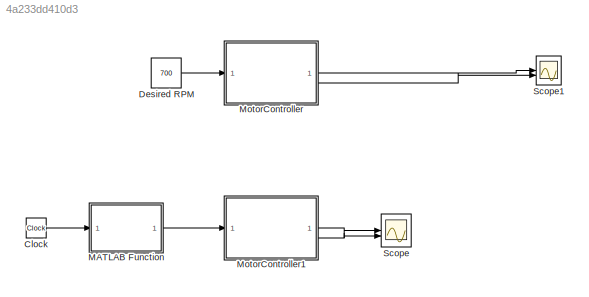
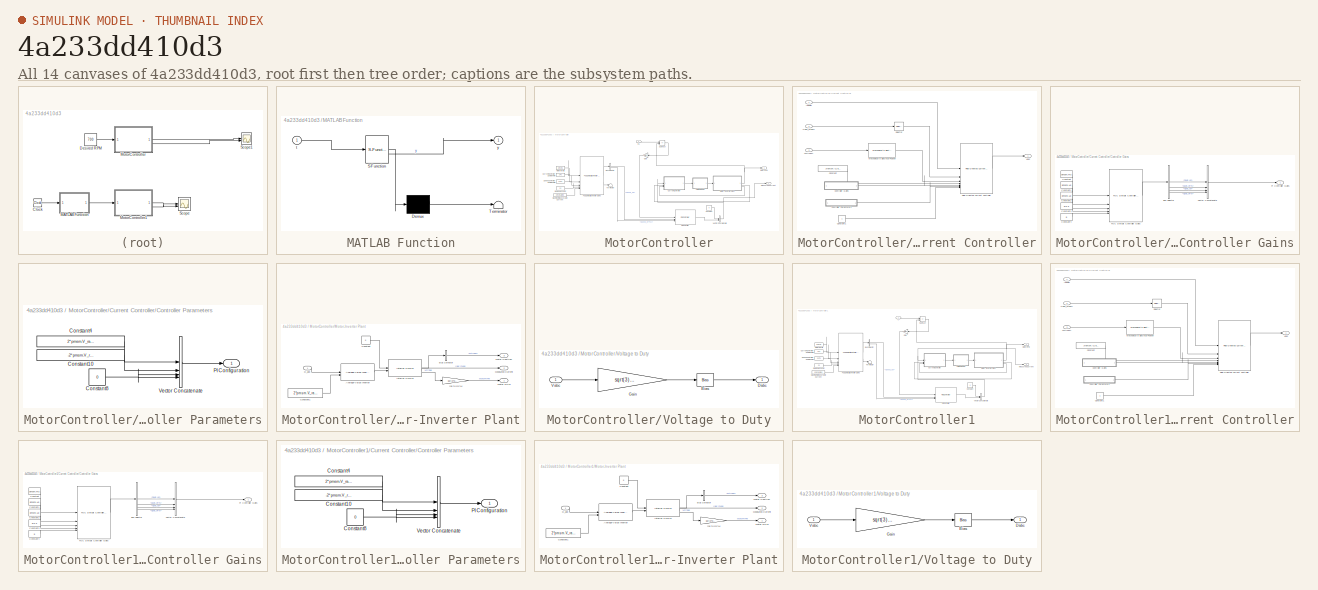
[diagram: thumbnail index - all 14 canvases of the model, root first then tree order]
MODEL slx_4a233dd410d3
KIND model
CONFIG AbsTol = auto
CONFIG EnableMultiTasking = off
CONFIG FixedStep = 25e-6
CONFIG MaxStep = auto
CONFIG MinStep = auto
CONFIG RelTol = 1e-3
CONFIG SampleTimeConstraint = Unconstrained
CONFIG SolverName = FixedStepAuto
CONFIG StartFcn = learning.simulink.modelCallbacks.startFunction(gcs)
CONFIG StartTime = 0.0
CONFIG StopFcn = learning.simulink.modelCallbacks.stopFunction(gcs);
CONFIG StopTime = T_total
WORKSPACE source: mxarray member
WORKSPACE courseObject: object (value not decoded)
WORKSPACE t_ans = [0 2.5e-05 5e-05 7.5e-05 0.0001 0.000125 0.00015 0.000175 0.0002 0.000225 0.00025 0.000275 ... (2001 elements, 2001x1)]
WORKSPACE y_ans = [0 0 0.052825565971 0.155642198422 0.305764234901 0.500647055712 0.737879693209 1.01517782556 1.33037713629 1.68142702156 2.06638462754 2.48340920133 ... (2001 elements, 2001x1)]
BLOCK [Clock] Clock
BLOCK [Constant] Desired RPM
  Value = 700
BLOCK [SubSystem] MATLAB Function
  ErrorFcn = Stateflow.Translate.translate
  PermitHierarchicalResolution = ExplicitOnly
  SFBlockType = MATLAB Function
  TreatAsAtomicUnit = on
BLOCK [Demux] MATLAB Function/ Demux 
  Outputs = 1
BLOCK [S-Function] MATLAB Function/ SFunction 
  EnableBusSupport = off
  FunctionName = sf_sfun
  PortCounts = [1 2]
  SFcnIsStateOwnerBlock = off
  SFunctionDeploymentMode = off
  Tag = Stateflow S-Function 2
BLOCK [Terminator] MATLAB Function/ Terminator 
BLOCK [Inport] MATLAB Function/t
BLOCK [Outport] MATLAB Function/y
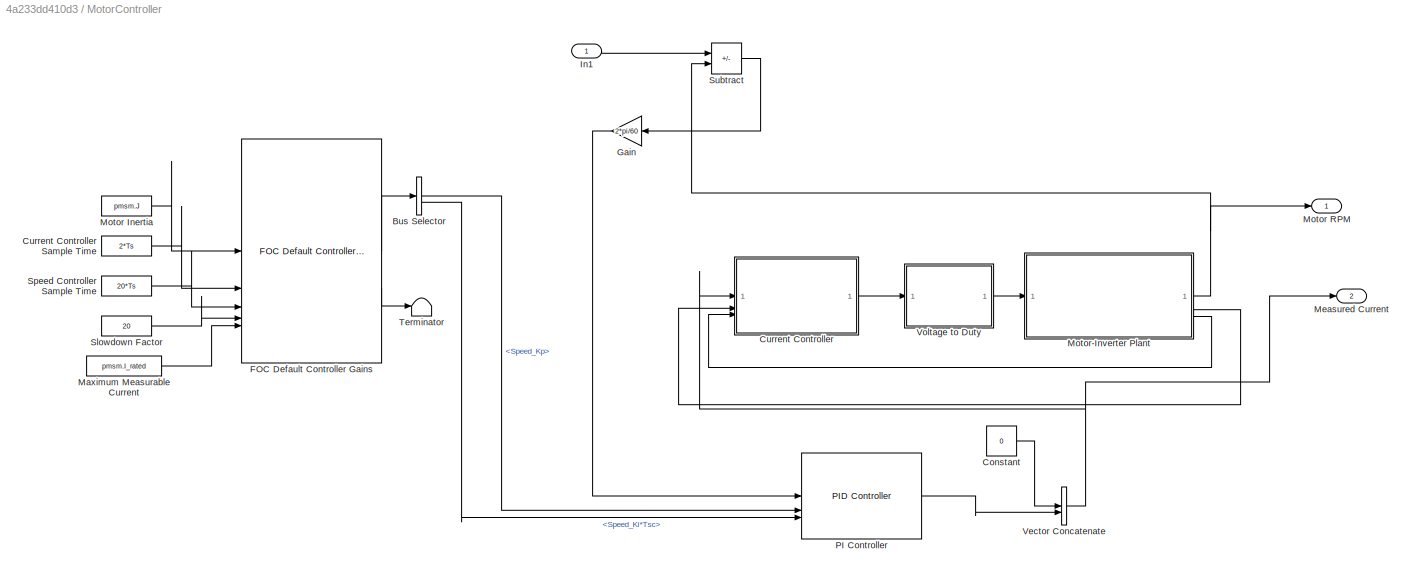
BLOCK [SubSystem] MotorController
BLOCK [BusSelector] MotorController/Bus Selector
  OutputSignals = Speed_Kp,Speed_Ki*Tsc
BLOCK [Constant] MotorController/Constant
  Value = 0
BLOCK [SubSystem] MotorController/Current Controller
BLOCK [Constant] MotorController/Current Controller Sample Time
  Value = 2*Ts
BLOCK [Inport] MotorController/Current Controller/<Iabc_meas>
  Port = 2
BLOCK [Inport] MotorController/Current Controller/<MtrPos>
  Port = 3
BLOCK [Constant] MotorController/Current Controller/Constant
  Value = 2*pmsm.V_rated/sqrt(3)
BLOCK [Constant] MotorController/Current Controller/Constant1
BLOCK [SubSystem] MotorController/Current Controller/Controller Gains
BLOCK [BusSelector] MotorController/Current Controller/Controller Gains/Bus Selector
  OutputSignals = Daxis_Kp,Daxis_Ki*Ts,Qaxis_Kp,Qaxis_Ki*Ts
BLOCK [Constant] MotorController/Current Controller/Controller Gains/Constant
  Value = pmsm.Rs
BLOCK [Constant] MotorController/Current Controller/Controller Gains/Constant1
  Value = pmsm.Ld
BLOCK [Constant] MotorController/Current Controller/Controller Gains/Constant2
  Value = pmsm.Lq
BLOCK [Constant] MotorController/Current Controller/Controller Gains/Constant3
  Value = 2*Ts
BLOCK [Constant] MotorController/Current Controller/Controller Gains/Constant4
  Value = 5
BLOCK [Reference] MotorController/Current Controller/Controller Gains/FOC Default Controller Gains  REF=mcbcontrollergainlib/FOC Default Controller Gains
  LibrarySourceBlock = mcblib/Controls/Controllers/FOC Default Controller Gains
  SourceBlock = mcbcontrollergainlib/FOC Default Controller Gains
  SourceType = FOC Default Controller Gains
BLOCK [Outport] MotorController/Current Controller/Controller Gains/PI Controller Gains
BLOCK [Concatenate] MotorController/Current Controller/Controller Gains/Vector Concatenate
  NumInputs = 4
BLOCK [SubSystem] MotorController/Current Controller/Controller Parameters
BLOCK [Constant] MotorController/Current Controller/Controller Parameters/Constant10
  Value = -2*pmsm.V_rated/sqrt(3)
BLOCK [Constant] MotorController/Current Controller/Controller Parameters/Constant4
  OutDataTypeStr = double
  Value = 2*pmsm.V_rated/sqrt(3)
BLOCK [Constant] MotorController/Current Controller/Controller Parameters/Constant8
  Value = 0
BLOCK [Outport] MotorController/Current Controller/Controller Parameters/PI Configuration
BLOCK [Concatenate] MotorController/Current Controller/Controller Parameters/Vector Concatenate
  NumInputs = 4
BLOCK [Reference] MotorController/Current Controller/Field-Oriented Current Controller  REF=mcbfoclib/Field-Oriented Current Controller
  LibrarySourceBlock = mcblib/Controls/Controllers/Field-Oriented Current Controller
  SourceBlock = mcbfoclib/Field-Oriented Current Controller
  SourceType = Field-Oriented Current Controller
BLOCK [Inport] MotorController/Current Controller/IdqRef
BLOCK [Reference] MotorController/Current Controller/Mechanical to Electrical Position  REF=mcbpositiondecoderlib/Mechanical to Electrical Position
  LibrarySourceBlock = mcblib/Sensor Decoders/Mechanical to Electrical Position
  SourceBlock = mcbpositiondecoderlib/Mechanical to Electrical Position
  SourceType = Mechanical to Electrical Position
BLOCK [Selector] MotorController/Current Controller/Selector
  IndexOptions = Index vector (dialog)
  Indices = [1 2]
  InputPortWidth = 3
  OutputSizes = 1
BLOCK [Outport] MotorController/Current Controller/Vabc
BLOCK [Reference] MotorController/FOC Default Controller Gains  REF=mcbcontrollergainlib/FOC Default Controller Gains
  LibrarySourceBlock = mcblib/Controls/Controllers/FOC Default Controller Gains
  SourceBlock = mcbcontrollergainlib/FOC Default Controller Gains
  SourceType = FOC Default Controller Gains
BLOCK [Gain] MotorController/Gain
  Gain = 2*pi/60
BLOCK [Inport] MotorController/In1
BLOCK [Constant] MotorController/Maximum Measurable Current
  Value = pmsm.I_rated
BLOCK [Outport] MotorController/Measured Current
  Port = 2
BLOCK [Constant] MotorController/Motor Inertia
  Value = pmsm.J
BLOCK [Outport] MotorController/Motor RPM
BLOCK [SubSystem] MotorController/Motor-Inverter Plant
BLOCK [Reference] MotorController/Motor-Inverter Plant/Average-Value Inverter  REF=mcbplantlib/Average-Value Inverter
  LibrarySourceBlock = mcblib/Electrical Systems/Inverters/Average-Value Inverter
  SourceBlock = mcbplantlib/Average-Value Inverter
  SourceType = Average Value Inverter
BLOCK [BusSelector] MotorController/Motor-Inverter Plant/Bus Selector
  OutputSignals = MtrPos
BLOCK [Constant] MotorController/Motor-Inverter Plant/Constant
  Value = 0
BLOCK [Constant] MotorController/Motor-Inverter Plant/Constant1
  Value = 2*pmsm.V_rated/sqrt(3)
BLOCK [Inport] MotorController/Motor-Inverter Plant/D_abc
BLOCK [Reference] MotorController/Motor-Inverter Plant/Interior PMSM  REF=autolibpmsminterior/Interior PMSM
  LibrarySourceBlock = mcblib/Electrical Systems/Motors/Interior PMSM
  SourceBlock = autolibpmsminterior/Interior PMSM
  SourceType = Interior PMSM
BLOCK [Outport] MotorController/Motor-Inverter Plant/Measured Current
  Port = 2
BLOCK [Outport] MotorController/Motor-Inverter Plant/Motor Position
  Port = 3
BLOCK [Outport] MotorController/Motor-Inverter Plant/Motor RPM
BLOCK [Gain] MotorController/Motor-Inverter Plant/rps to RPM
  Gain = 60/(2*pi)
BLOCK [Reference] MotorController/PI Controller  REF=slpidlib/PID Controller
  LibrarySourceBlock = mcbhdllib/Controls/Controllers/PI Controller
  SourceBlock = slpidlib/PID Controller
  SourceType = PID 1dof
BLOCK [Constant] MotorController/Slowdown Factor
  Value = 20
BLOCK [Constant] MotorController/Speed Controller Sample Time
  Value = 20*Ts
BLOCK [Sum] MotorController/Subtract
  IconShape = rectangular
  Inputs = +-
BLOCK [Terminator] MotorController/Terminator
BLOCK [Concatenate] MotorController/Vector Concatenate
BLOCK [SubSystem] MotorController/Voltage to Duty
BLOCK [Bias] MotorController/Voltage to Duty/Bias
  Bias = 0.5
  SaturateOnIntegerOverflow = off
BLOCK [Outport] MotorController/Voltage to Duty/Dabc
BLOCK [Gain] MotorController/Voltage to Duty/Gain
  Gain = sqrt(3)/(2*pmsm.V_rated)
BLOCK [Inport] MotorController/Voltage to Duty/Vabc
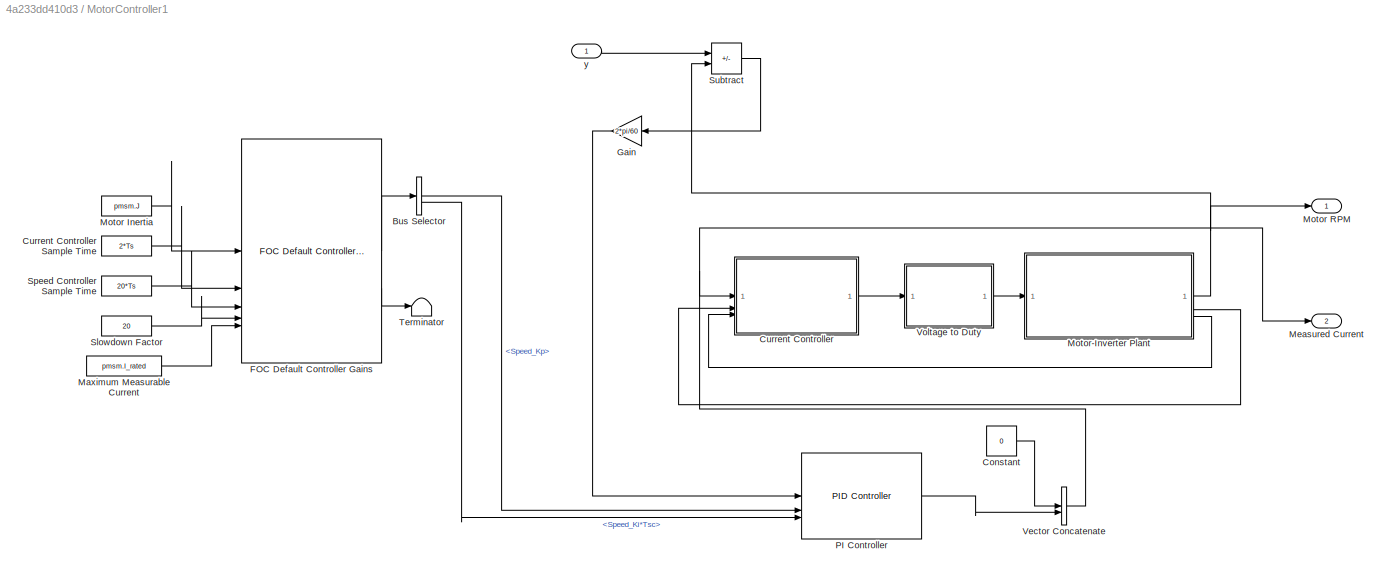
BLOCK [SubSystem] MotorController1
BLOCK [BusSelector] MotorController1/Bus Selector
  OutputSignals = Speed_Kp,Speed_Ki*Tsc
BLOCK [Constant] MotorController1/Constant
  Value = 0
BLOCK [SubSystem] MotorController1/Current Controller
BLOCK [Constant] MotorController1/Current Controller Sample Time
  Value = 2*Ts
BLOCK [Inport] MotorController1/Current Controller/<Iabc_meas>
  Port = 2
BLOCK [Inport] MotorController1/Current Controller/<MtrPos>
  Port = 3
BLOCK [Constant] MotorController1/Current Controller/Constant
  Value = 2*pmsm.V_rated/sqrt(3)
BLOCK [Constant] MotorController1/Current Controller/Constant1
BLOCK [SubSystem] MotorController1/Current Controller/Controller Gains
BLOCK [BusSelector] MotorController1/Current Controller/Controller Gains/Bus Selector
  OutputSignals = Daxis_Kp,Daxis_Ki*Ts,Qaxis_Kp,Qaxis_Ki*Ts
BLOCK [Constant] MotorController1/Current Controller/Controller Gains/Constant
  Value = pmsm.Rs
BLOCK [Constant] MotorController1/Current Controller/Controller Gains/Constant1
  Value = pmsm.Ld
BLOCK [Constant] MotorController1/Current Controller/Controller Gains/Constant2
  Value = pmsm.Lq
BLOCK [Constant] MotorController1/Current Controller/Controller Gains/Constant3
  Value = 2*Ts
BLOCK [Constant] MotorController1/Current Controller/Controller Gains/Constant4
  Value = 5
BLOCK [Reference] MotorController1/Current Controller/Controller Gains/FOC Default Controller Gains  REF=mcbcontrollergainlib/FOC Default Controller Gains
  LibrarySourceBlock = mcblib/Controls/Controllers/FOC Default Controller Gains
  SourceBlock = mcbcontrollergainlib/FOC Default Controller Gains
  SourceType = FOC Default Controller Gains
BLOCK [Outport] MotorController1/Current Controller/Controller Gains/PI Controller Gains
BLOCK [Concatenate] MotorController1/Current Controller/Controller Gains/Vector Concatenate
  NumInputs = 4
BLOCK [SubSystem] MotorController1/Current Controller/Controller Parameters
BLOCK [Constant] MotorController1/Current Controller/Controller Parameters/Constant10
  Value = -2*pmsm.V_rated/sqrt(3)
BLOCK [Constant] MotorController1/Current Controller/Controller Parameters/Constant4
  OutDataTypeStr = double
  Value = 2*pmsm.V_rated/sqrt(3)
BLOCK [Constant] MotorController1/Current Controller/Controller Parameters/Constant8
  Value = 0
BLOCK [Outport] MotorController1/Current Controller/Controller Parameters/PI Configuration
BLOCK [Concatenate] MotorController1/Current Controller/Controller Parameters/Vector Concatenate
  NumInputs = 4
BLOCK [Reference] MotorController1/Current Controller/Field-Oriented Current Controller  REF=mcbfoclib/Field-Oriented Current Controller
  LibrarySourceBlock = mcblib/Controls/Controllers/Field-Oriented Current Controller
  SourceBlock = mcbfoclib/Field-Oriented Current Controller
  SourceType = Field-Oriented Current Controller
BLOCK [Inport] MotorController1/Current Controller/IdqRef
BLOCK [Reference] MotorController1/Current Controller/Mechanical to Electrical Position  REF=mcbpositiondecoderlib/Mechanical to Electrical Position
  LibrarySourceBlock = mcblib/Sensor Decoders/Mechanical to Electrical Position
  SourceBlock = mcbpositiondecoderlib/Mechanical to Electrical Position
  SourceType = Mechanical to Electrical Position
BLOCK [Selector] MotorController1/Current Controller/Selector
  IndexOptions = Index vector (dialog)
  Indices = [1 2]
  InputPortWidth = 3
  OutputSizes = 1
BLOCK [Outport] MotorController1/Current Controller/Vabc
BLOCK [Reference] MotorController1/FOC Default Controller Gains  REF=mcbcontrollergainlib/FOC Default Controller Gains
  LibrarySourceBlock = mcblib/Controls/Controllers/FOC Default Controller Gains
  SourceBlock = mcbcontrollergainlib/FOC Default Controller Gains
  SourceType = FOC Default Controller Gains
BLOCK [Gain] MotorController1/Gain
  Gain = 2*pi/60
BLOCK [Constant] MotorController1/Maximum Measurable Current
  Value = pmsm.I_rated
BLOCK [Outport] MotorController1/Measured Current
  Port = 2
BLOCK [Constant] MotorController1/Motor Inertia
  Value = pmsm.J
BLOCK [Outport] MotorController1/Motor RPM
BLOCK [SubSystem] MotorController1/Motor-Inverter Plant
BLOCK [Reference] MotorController1/Motor-Inverter Plant/Average-Value Inverter  REF=mcbplantlib/Average-Value Inverter
  LibrarySourceBlock = mcblib/Electrical Systems/Inverters/Average-Value Inverter
  SourceBlock = mcbplantlib/Average-Value Inverter
  SourceType = Average Value Inverter
BLOCK [BusSelector] MotorController1/Motor-Inverter Plant/Bus Selector
  OutputSignals = MtrPos
BLOCK [Constant] MotorController1/Motor-Inverter Plant/Constant
  Value = 0
BLOCK [Constant] MotorController1/Motor-Inverter Plant/Constant1
  Value = 2*pmsm.V_rated/sqrt(3)
BLOCK [Inport] MotorController1/Motor-Inverter Plant/D_abc
BLOCK [Reference] MotorController1/Motor-Inverter Plant/Interior PMSM  REF=autolibpmsminterior/Interior PMSM
  LibrarySourceBlock = mcblib/Electrical Systems/Motors/Interior PMSM
  SourceBlock = autolibpmsminterior/Interior PMSM
  SourceType = Interior PMSM
BLOCK [Outport] MotorController1/Motor-Inverter Plant/Measured Current
  Port = 2
BLOCK [Outport] MotorController1/Motor-Inverter Plant/Motor Position
  Port = 3
BLOCK [Outport] MotorController1/Motor-Inverter Plant/Motor RPM
BLOCK [Gain] MotorController1/Motor-Inverter Plant/rps to RPM
  Gain = 60/(2*pi)
BLOCK [Reference] MotorController1/PI Controller  REF=slpidlib/PID Controller
  LibrarySourceBlock = mcbhdllib/Controls/Controllers/PI Controller
  SourceBlock = slpidlib/PID Controller
  SourceType = PID 1dof
BLOCK [Constant] MotorController1/Slowdown Factor
  Value = 20
BLOCK [Constant] MotorController1/Speed Controller Sample Time
  Value = 20*Ts
BLOCK [Sum] MotorController1/Subtract
  IconShape = rectangular
  Inputs = +-
BLOCK [Terminator] MotorController1/Terminator
BLOCK [Concatenate] MotorController1/Vector Concatenate
BLOCK [SubSystem] MotorController1/Voltage to Duty
BLOCK [Bias] MotorController1/Voltage to Duty/Bias
  Bias = 0.5
  SaturateOnIntegerOverflow = off
BLOCK [Outport] MotorController1/Voltage to Duty/Dabc
BLOCK [Gain] MotorController1/Voltage to Duty/Gain
  Gain = sqrt(3)/(2*pmsm.V_rated)
BLOCK [Inport] MotorController1/Voltage to Duty/Vabc
BLOCK [Inport] MotorController1/y
BLOCK [Scope] Scope
  ActiveDisplayYMaximum = 810.75563817244858
  ActiveDisplayYMinimum = -312.679673846435
  Floating = off
  GraphicalSettings = {"Style":{"BackgroundColor":[0.12941176470588237,0.12941176470588237,0.12941176470588237],"AxesColor":[0.07058823529411765,0.07058823529411765,0.07058823529411765],"LabelsColor":[0.8509803921568627,0.8509803921568627,0.8509803921568627],"PreserveColors":false,"Visible":[true,true,true,true],"LineStyle":["-","-","-","-"],"LineWidth":[1.5,1.5,1.5,1.5],"BarWidth":[0.9,0.9,0.9,0.9],"LineColor":["auto"...<+2500ch>
  MultipleDisplayCache = [{"MaxYLimMag":237.41691614096536,"MaxYLimReal":810.75563817244858,"MinYLimMag":0,"MinYLimReal":-312.679673846435,"PlotAsMagnitudePhase":false,"ShowGrid":true,"ShowLegend":false,"Title":"%<SignalLabel>","YLabel":""}]
  NumInputPorts = 2
  ScopeFrameLocation = window
  WasSavedAsWebScope = on
  WindowPosition = [560.000000,315.000000,560.000000,420.000000,]
BLOCK [Scope] Scope1
  ActiveDisplayYMaximum = 823.13961520260216
  ActiveDisplayYMinimum = -91.459957244733559
  DataLoggingVariableName = ScopeData1
  Floating = off
  GraphicalSettings = {"Style":{"BackgroundColor":[0.12941176470588237,0.12941176470588237,0.12941176470588237],"AxesColor":[0.07058823529411765,0.07058823529411765,0.07058823529411765],"LabelsColor":[0.8509803921568627,0.8509803921568627,0.8509803921568627],"PreserveColors":false,"Visible":[true,true,true,true],"LineStyle":["-","-","-","-"],"LineWidth":[1.5,1.5,1.5,1.5],"BarWidth":[0.9,0.9,0.9,0.9],"LineColor":["auto"...<+2492ch>
  MultipleDisplayCache = [{"MaxYLimMag":823.13961520260216,"MaxYLimReal":823.13961520260216,"MinYLimMag":0,"MinYLimReal":-91.459957244733559,"PlotAsMagnitudePhase":false,"ShowGrid":true,"ShowLegend":false,"Title":"%<SignalLabel>","YLabel":""}]
  NumInputPorts = 2
  ScopeFrameLocation = window
  WasSavedAsWebScope = on
  WindowPosition = [560.000000,315.000000,560.000000,420.000000,]
LINE Clock:1 -> MATLAB Function:1
LINE Desired RPM:1 -> MotorController:1
LINE MATLAB Function:1 -> MotorController1:1
LINE MotorController/Bus Selector:1 -> MotorController/PI Controller:2
LINE MotorController/Bus Selector:2 -> MotorController/PI Controller:3
LINE MotorController/Constant:1 -> MotorController/Vector Concatenate:1
LINE MotorController/Current Controller Sample Time:1 -> MotorController/FOC Default Controller Gains:2
LINE MotorController/Current Controller/<Iabc_meas>:1 -> MotorController/Current Controller/Selector:1
LINE MotorController/Current Controller/<MtrPos>:1 -> MotorController/Current Controller/Mechanical to Electrical Position:1
LINE MotorController/Current Controller/Constant1:1 -> MotorController/Current Controller/Field-Oriented Current Controller:7
LINE MotorController/Current Controller/Constant:1 -> MotorController/Current Controller/Field-Oriented Current Controller:4
LINE MotorController/Current Controller/Controller Gains/Bus Selector:1 -> MotorController/Current Controller/Controller Gains/Vector Concatenate:1
LINE MotorController/Current Controller/Controller Gains/Bus Selector:2 -> MotorController/Current Controller/Controller Gains/Vector Concatenate:2
LINE MotorController/Current Controller/Controller Gains/Bus Selector:3 -> MotorController/Current Controller/Controller Gains/Vector Concatenate:3
LINE MotorController/Current Controller/Controller Gains/Bus Selector:4 -> MotorController/Current Controller/Controller Gains/Vector Concatenate:4
LINE MotorController/Current Controller/Controller Gains/Constant1:1 -> MotorController/Current Controller/Controller Gains/FOC Default Controller Gains:2
LINE MotorController/Current Controller/Controller Gains/Constant2:1 -> MotorController/Current Controller/Controller Gains/FOC Default Controller Gains:3
LINE MotorController/Current Controller/Controller Gains/Constant3:1 -> MotorController/Current Controller/Controller Gains/FOC Default Controller Gains:4
LINE MotorController/Current Controller/Controller Gains/Constant4:1 -> MotorController/Current Controller/Controller Gains/FOC Default Controller Gains:5
LINE MotorController/Current Controller/Controller Gains/Constant:1 -> MotorController/Current Controller/Controller Gains/FOC Default Controller Gains:1
LINE MotorController/Current Controller/Controller Gains/FOC Default Controller Gains:1 -> MotorController/Current Controller/Controller Gains/Bus Selector:1
LINE MotorController/Current Controller/Controller Gains/Vector Concatenate:1 -> MotorController/Current Controller/Controller Gains/PI Controller Gains:1
LINE MotorController/Current Controller/Controller Gains:1 -> MotorController/Current Controller/Field-Oriented Current Controller:5
LINE MotorController/Current Controller/Controller Parameters/Constant10:1 -> MotorController/Current Controller/Controller Parameters/Vector Concatenate:2
LINE MotorController/Current Controller/Controller Parameters/Constant4:1 -> MotorController/Current Controller/Controller Parameters/Vector Concatenate:1
NET MotorController/Current Controller/Controller Parameters/Constant8:1 -> MotorController/Current Controller/Controller Parameters/Vector Concatenate:3, MotorController/Current Controller/Controller Parameters/Vector Concatenate:4
LINE MotorController/Current Controller/Controller Parameters/Vector Concatenate:1 -> MotorController/Current Controller/Controller Parameters/PI Configuration:1
LINE MotorController/Current Controller/Controller Parameters:1 -> MotorController/Current Controller/Field-Oriented Current Controller:6
LINE MotorController/Current Controller/Field-Oriented Current Controller:1 -> MotorController/Current Controller/Vabc:1
LINE MotorController/Current Controller/IdqRef:1 -> MotorController/Current Controller/Field-Oriented Current Controller:1
LINE MotorController/Current Controller/Mechanical to Electrical Position:1 -> MotorController/Current Controller/Field-Oriented Current Controller:3
LINE MotorController/Current Controller/Selector:1 -> MotorController/Current Controller/Field-Oriented Current Controller:2
LINE MotorController/Current Controller:1 -> MotorController/Voltage to Duty:1
LINE MotorController/FOC Default Controller Gains:1 -> MotorController/Bus Selector:1
LINE MotorController/FOC Default Controller Gains:2 -> MotorController/Terminator:1
LINE MotorController/Gain:1 -> MotorController/PI Controller:1
LINE MotorController/In1:1 -> MotorController/Subtract:1
LINE MotorController/Maximum Measurable Current:1 -> MotorController/FOC Default Controller Gains:5
LINE MotorController/Motor Inertia:1 -> MotorController/FOC Default Controller Gains:1
LINE MotorController/Motor-Inverter Plant/Average-Value Inverter:1 -> MotorController/Motor-Inverter Plant/Interior PMSM:2
LINE MotorController/Motor-Inverter Plant/Bus Selector:1 -> MotorController/Motor-Inverter Plant/Motor Position:1
LINE MotorController/Motor-Inverter Plant/Constant1:1 -> MotorController/Motor-Inverter Plant/Average-Value Inverter:2
LINE MotorController/Motor-Inverter Plant/Constant:1 -> MotorController/Motor-Inverter Plant/Interior PMSM:1
LINE MotorController/Motor-Inverter Plant/D_abc:1 -> MotorController/Motor-Inverter Plant/Average-Value Inverter:1
LINE MotorController/Motor-Inverter Plant/Interior PMSM:1 -> MotorController/Motor-Inverter Plant/Bus Selector:1
LINE MotorController/Motor-Inverter Plant/Interior PMSM:2 -> MotorController/Motor-Inverter Plant/Measured Current:1
LINE MotorController/Motor-Inverter Plant/Interior PMSM:3 -> MotorController/Motor-Inverter Plant/rps to RPM:1
LINE MotorController/Motor-Inverter Plant/rps to RPM:1 -> MotorController/Motor-Inverter Plant/Motor RPM:1
NET MotorController/Motor-Inverter Plant:1 -> MotorController/Motor RPM:1, MotorController/Subtract:2
LINE MotorController/Motor-Inverter Plant:2 -> MotorController/Current Controller:2
LINE MotorController/Motor-Inverter Plant:3 -> MotorController/Current Controller:3
LINE MotorController/PI Controller:1 -> MotorController/Vector Concatenate:2
LINE MotorController/Slowdown Factor:1 -> MotorController/FOC Default Controller Gains:4
LINE MotorController/Speed Controller Sample Time:1 -> MotorController/FOC Default Controller Gains:3
LINE MotorController/Subtract:1 -> MotorController/Gain:1
NET MotorController/Vector Concatenate:1 -> MotorController/Current Controller:1, MotorController/Measured Current:1
LINE MotorController/Voltage to Duty/Bias:1 -> MotorController/Voltage to Duty/Dabc:1
LINE MotorController/Voltage to Duty/Gain:1 -> MotorController/Voltage to Duty/Bias:1
LINE MotorController/Voltage to Duty/Vabc:1 -> MotorController/Voltage to Duty/Gain:1
LINE MotorController/Voltage to Duty:1 -> MotorController/Motor-Inverter Plant:1
LINE MotorController1/Bus Selector:1 -> MotorController1/PI Controller:2
LINE MotorController1/Bus Selector:2 -> MotorController1/PI Controller:3
LINE MotorController1/Constant:1 -> MotorController1/Vector Concatenate:1
LINE MotorController1/Current Controller Sample Time:1 -> MotorController1/FOC Default Controller Gains:2
LINE MotorController1/Current Controller/<Iabc_meas>:1 -> MotorController1/Current Controller/Selector:1
LINE MotorController1/Current Controller/<MtrPos>:1 -> MotorController1/Current Controller/Mechanical to Electrical Position:1
LINE MotorController1/Current Controller/Constant1:1 -> MotorController1/Current Controller/Field-Oriented Current Controller:7
LINE MotorController1/Current Controller/Constant:1 -> MotorController1/Current Controller/Field-Oriented Current Controller:4
LINE MotorController1/Current Controller/Controller Gains/Bus Selector:1 -> MotorController1/Current Controller/Controller Gains/Vector Concatenate:1
LINE MotorController1/Current Controller/Controller Gains/Bus Selector:2 -> MotorController1/Current Controller/Controller Gains/Vector Concatenate:2
LINE MotorController1/Current Controller/Controller Gains/Bus Selector:3 -> MotorController1/Current Controller/Controller Gains/Vector Concatenate:3
LINE MotorController1/Current Controller/Controller Gains/Bus Selector:4 -> MotorController1/Current Controller/Controller Gains/Vector Concatenate:4
LINE MotorController1/Current Controller/Controller Gains/Constant1:1 -> MotorController1/Current Controller/Controller Gains/FOC Default Controller Gains:2
LINE MotorController1/Current Controller/Controller Gains/Constant2:1 -> MotorController1/Current Controller/Controller Gains/FOC Default Controller Gains:3
LINE MotorController1/Current Controller/Controller Gains/Constant3:1 -> MotorController1/Current Controller/Controller Gains/FOC Default Controller Gains:4
LINE MotorController1/Current Controller/Controller Gains/Constant4:1 -> MotorController1/Current Controller/Controller Gains/FOC Default Controller Gains:5
LINE MotorController1/Current Controller/Controller Gains/Constant:1 -> MotorController1/Current Controller/Controller Gains/FOC Default Controller Gains:1
LINE MotorController1/Current Controller/Controller Gains/FOC Default Controller Gains:1 -> MotorController1/Current Controller/Controller Gains/Bus Selector:1
LINE MotorController1/Current Controller/Controller Gains/Vector Concatenate:1 -> MotorController1/Current Controller/Controller Gains/PI Controller Gains:1
LINE MotorController1/Current Controller/Controller Gains:1 -> MotorController1/Current Controller/Field-Oriented Current Controller:5
LINE MotorController1/Current Controller/Controller Parameters/Constant10:1 -> MotorController1/Current Controller/Controller Parameters/Vector Concatenate:2
LINE MotorController1/Current Controller/Controller Parameters/Constant4:1 -> MotorController1/Current Controller/Controller Parameters/Vector Concatenate:1
NET MotorController1/Current Controller/Controller Parameters/Constant8:1 -> MotorController1/Current Controller/Controller Parameters/Vector Concatenate:3, MotorController1/Current Controller/Controller Parameters/Vector Concatenate:4
LINE MotorController1/Current Controller/Controller Parameters/Vector Concatenate:1 -> MotorController1/Current Controller/Controller Parameters/PI Configuration:1
LINE MotorController1/Current Controller/Controller Parameters:1 -> MotorController1/Current Controller/Field-Oriented Current Controller:6
LINE MotorController1/Current Controller/Field-Oriented Current Controller:1 -> MotorController1/Current Controller/Vabc:1
LINE MotorController1/Current Controller/IdqRef:1 -> MotorController1/Current Controller/Field-Oriented Current Controller:1
LINE MotorController1/Current Controller/Mechanical to Electrical Position:1 -> MotorController1/Current Controller/Field-Oriented Current Controller:3
LINE MotorController1/Current Controller/Selector:1 -> MotorController1/Current Controller/Field-Oriented Current Controller:2
LINE MotorController1/Current Controller:1 -> MotorController1/Voltage to Duty:1
LINE MotorController1/FOC Default Controller Gains:1 -> MotorController1/Bus Selector:1
LINE MotorController1/FOC Default Controller Gains:2 -> MotorController1/Terminator:1
LINE MotorController1/Gain:1 -> MotorController1/PI Controller:1
LINE MotorController1/Maximum Measurable Current:1 -> MotorController1/FOC Default Controller Gains:5
LINE MotorController1/Motor Inertia:1 -> MotorController1/FOC Default Controller Gains:1
LINE MotorController1/Motor-Inverter Plant/Average-Value Inverter:1 -> MotorController1/Motor-Inverter Plant/Interior PMSM:2
LINE MotorController1/Motor-Inverter Plant/Bus Selector:1 -> MotorController1/Motor-Inverter Plant/Motor Position:1
LINE MotorController1/Motor-Inverter Plant/Constant1:1 -> MotorController1/Motor-Inverter Plant/Average-Value Inverter:2
LINE MotorController1/Motor-Inverter Plant/Constant:1 -> MotorController1/Motor-Inverter Plant/Interior PMSM:1
LINE MotorController1/Motor-Inverter Plant/D_abc:1 -> MotorController1/Motor-Inverter Plant/Average-Value Inverter:1
LINE MotorController1/Motor-Inverter Plant/Interior PMSM:1 -> MotorController1/Motor-Inverter Plant/Bus Selector:1
LINE MotorController1/Motor-Inverter Plant/Interior PMSM:2 -> MotorController1/Motor-Inverter Plant/Measured Current:1
LINE MotorController1/Motor-Inverter Plant/Interior PMSM:3 -> MotorController1/Motor-Inverter Plant/rps to RPM:1
LINE MotorController1/Motor-Inverter Plant/rps to RPM:1 -> MotorController1/Motor-Inverter Plant/Motor RPM:1
NET MotorController1/Motor-Inverter Plant:1 -> MotorController1/Motor RPM:1, MotorController1/Subtract:2
LINE MotorController1/Motor-Inverter Plant:2 -> MotorController1/Current Controller:2
LINE MotorController1/Motor-Inverter Plant:3 -> MotorController1/Current Controller:3
LINE MotorController1/PI Controller:1 -> MotorController1/Vector Concatenate:2
LINE MotorController1/Slowdown Factor:1 -> MotorController1/FOC Default Controller Gains:4
LINE MotorController1/Speed Controller Sample Time:1 -> MotorController1/FOC Default Controller Gains:3
LINE MotorController1/Subtract:1 -> MotorController1/Gain:1
NET MotorController1/Vector Concatenate:1 -> MotorController1/Current Controller:1, MotorController1/Measured Current:1
LINE MotorController1/Voltage to Duty/Bias:1 -> MotorController1/Voltage to Duty/Dabc:1
LINE MotorController1/Voltage to Duty/Gain:1 -> MotorController1/Voltage to Duty/Bias:1
LINE MotorController1/Voltage to Duty/Vabc:1 -> MotorController1/Voltage to Duty/Gain:1
LINE MotorController1/Voltage to Duty:1 -> MotorController1/Motor-Inverter Plant:1
LINE MotorController1/y:1 -> MotorController1/Subtract:1
LINE MotorController1:1 -> Scope:1
LINE MotorController1:2 -> Scope:2
LINE MotorController:1 -> Scope1:1
LINE MotorController:2 -> Scope1:2
note: NET lines group one-source signal fan-out (src -> all destinations, sorted); 1:1 wires keep LINE
CHART MATLAB Function states=1 transitions=1
  STATE_LABEL 'eML_blk_kernel()'
  STATE_LABEL 'SCRIPT:\nfunction y = estimateSpeed(t)\n    % y = estimateSpeed(t) estimates the speed (rpm) based on time (s)\n    % Input: t - time in seconds (scalar or array)\n    % Output: y - estimated speed in rpm\n\n    % Initialize output\n    y = zeros(size(t));\n\n    % Define time segments and speed levels based on the graph\n    for i = 1:length(t)\n        if t(i) < 2  % Ramp-up from 0 to 500 rpm (approx. 2 se...<+588ch>'
CHART  states=0 transitions=0
